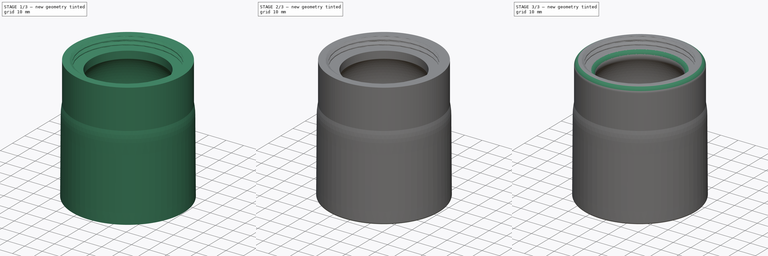
[diagram: build sequence overview — one tinted view per stage of 3, left to right]
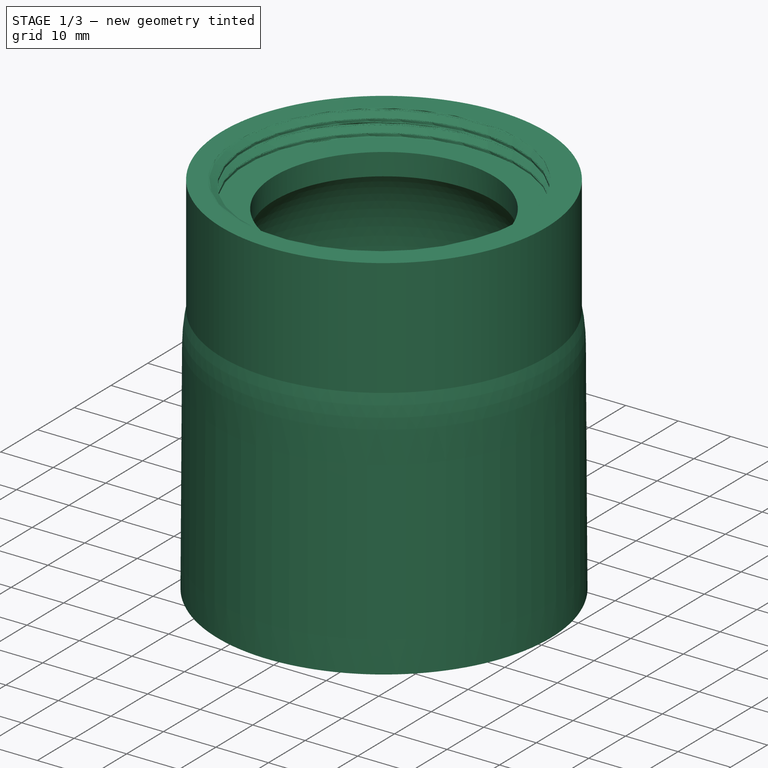
[diagram: stage 1 of 3 — iso view after this stage's code; geometry added in this stage tinted green]
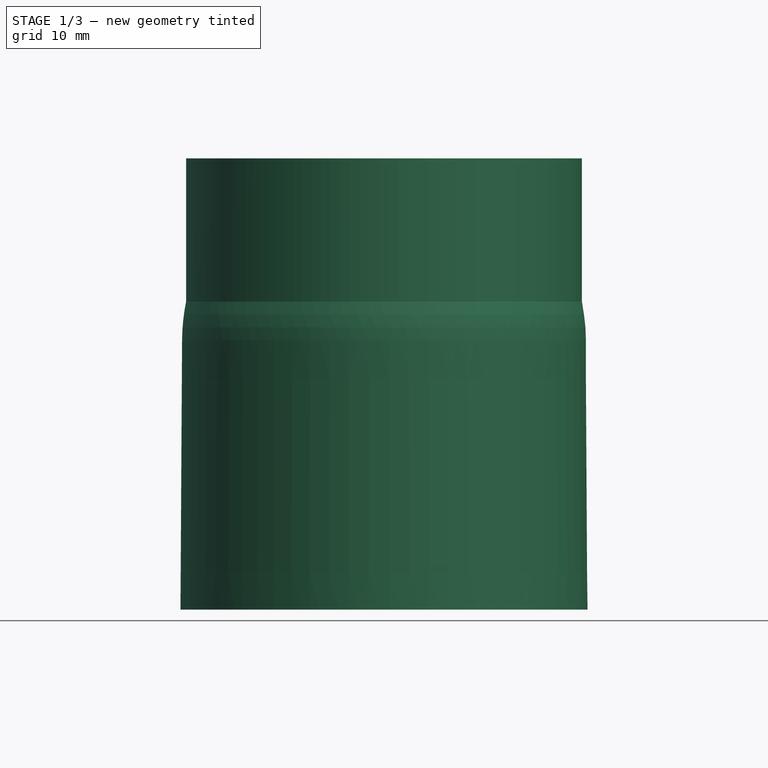
[diagram: stage 1 of 3 — front view after this stage's code; geometry added in this stage tinted green]
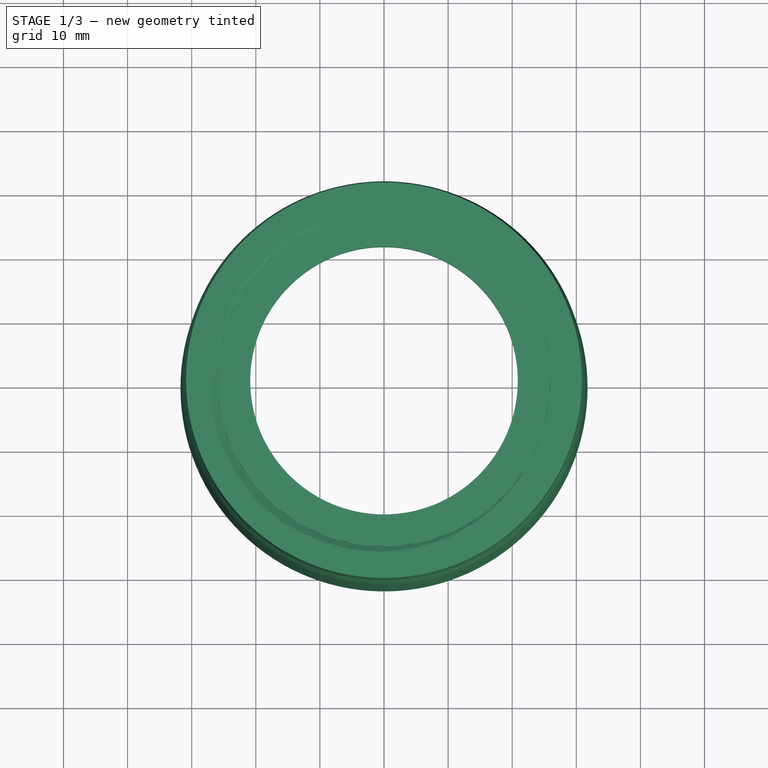
[diagram: stage 1 of 3 — top view after this stage's code; geometry added in this stage tinted green]
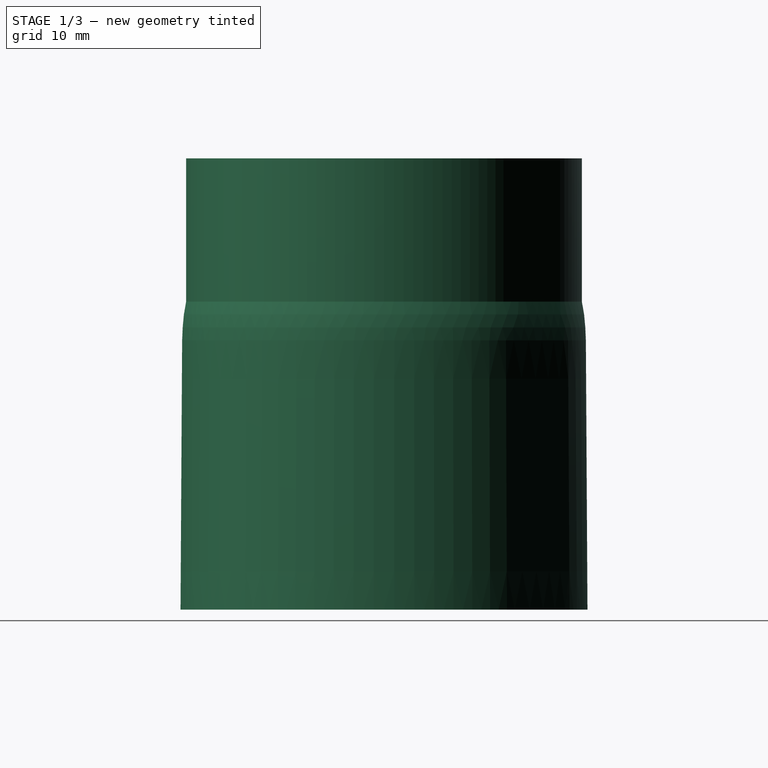
[diagram: stage 1 of 3 — right view after this stage's code; geometry added in this stage tinted green]
FCSTD DOCUMENT  (FreeCAD 0.20R29177 +426 (Git))
Label: diffuser
License: All rights reserved
LicenseURL: http://en.wikipedia.org/wiki/All_rights_reserved
objects: PartDesign::Fillet×3, Sketcher::SketchObject×2, PartDesign::Revolution×1, Part::Part2DObjectPython×1, Part::Helix×1, PartDesign::SubtractivePipe×1, PartDesign::Body×1
note: 15 computed .brp shape members not serialized (recipe doc carries the construction recipe); baked Part::Feature solids carry a one-line shape summary decoded from their .brp

FEATURE [Sketcher::SketchObject] Sketch
  FullyConstrained = true
  MapMode = 5
  Placement = pos=(0,0,0) rot=(1,0,0;1.5708rad)
  Support = -> [XZ_Plane]
  sketch-geometry (20):
    g0: LineSegment StartX=-31.5 StartY=42 StartZ=0 EndX=-31.75 EndY=0 EndZ=0
    g1: LineSegment StartX=-31.75 StartY=0 StartZ=0 EndX=-28.75 EndY=0 EndZ=0
    g2: ArcOfCircle CenterX=0 CenterY=41.8125 CenterZ=0 NormalX=0 NormalY=0 NormalZ=1 AngleXU=0 Radius=31.5006 StartAngle=2.2952 EndAngle=3.13564
    g3: LineSegment StartX=-28.75 StartY=0 StartZ=0 EndX=-28.5 EndY=42 EndZ=0
    g4: ArcOfCircle CenterX=0 CenterY=41.8125 CenterZ=0 NormalX=0 NormalY=0 NormalZ=1 AngleXU=0 Radius=28.5006 StartAngle=2.3927 EndAngle=3.13501
    g5: LineSegment StartX=-20.875 StartY=61.2166 StartZ=0 EndX=-20.875 EndY=65.4032 EndZ=0
    g6: LineSegment StartX=-30.875 StartY=48.0591 StartZ=0 EndX=-30.875 EndY=70.4032 EndZ=0
    g7: LineSegment StartX=-30.875 StartY=70.4032 StartZ=0 EndX=-25.875 EndY=70.4032 EndZ=0
    g8: LineSegment StartX=-25.875 StartY=70.4032 StartZ=0 EndX=-25.875 EndY=65.4032 EndZ=0
    g9: LineSegment StartX=-20.875 StartY=65.4032 StartZ=0 EndX=-25.875 EndY=65.4032 EndZ=0
    g10: ArcOfCircle CenterX=0 CenterY=41.8125 CenterZ=0 NormalX=0 NormalY=0 NormalZ=1 AngleXU=0 Radius=31.5006 StartAngle=2.94197 EndAngle=3.13564
    g11: LineSegment StartX=-30.875 StartY=70.4032 StartZ=0 EndX=-20.875 EndY=70.4032 EndZ=0
    g12: LineSegment StartX=-20.875 StartY=70.4032 StartZ=0 EndX=-20.875 EndY=61.2166 EndZ=0
    g13: LineSegment StartX=-31.5 StartY=42 StartZ=0 EndX=-28.5 EndY=42 EndZ=0
    g14: Circle CenterX=-59.8285 CenterY=20.6854 CenterZ=0 NormalX=0 NormalY=0 NormalZ=1 AngleXU=0 Radius=31.3011
    g15: LineSegment StartX=-28.6429 StartY=17.9997 StartZ=0 EndX=-28.6131 EndY=22.9997 EndZ=0
    g16: LineSegment StartX=-28.528 StartY=20.4991 StartZ=0 EndX=-28.628 EndY=20.4997 EndZ=0
    g17: ArcOfCircle CenterX=-59.8285 CenterY=20.6854 CenterZ=0 NormalX=0 NormalY=0 NormalZ=1 AngleXU=0 Radius=31.3011 StartAngle=6.19728 EndAngle=6.35719
    g18: LineSegment StartX=-28.6131 StartY=22.9997 StartZ=0 EndX=-28.5 EndY=42 EndZ=0
    g19: LineSegment StartX=-28.75 StartY=0 StartZ=0 EndX=-28.6429 EndY=17.9997 EndZ=0
  constraints (57):
    c: PointOnObject(g0,g-1)
    c: Coincident(g1,g0)
    c: Horizontal(g1)
    c: Tangent(g2,g0) = -1.5708
    c: Coincident(g3,g1)
    c: Coincident(g4,g2)
    c: Coincident(g4,g3)
    c: Coincident(g5,g4)
    c: Coincident(g5,g2)
    c: Vertical(g5)
    c: DistanceX(g1,g1) = 3
    c: DistanceY(g0,g0) = 42
    c: PointOnObject(g2,g-2)
    c: DistanceX(g4,g2) = 20.875
    c: DistanceX(g1,g-1) = 28.75
    c: DistanceY(g5,g5) = 4.18655
    c: Vertical(g6)
    c: Coincident(g7,g6)
    c: Horizontal(g7)
    c: Coincident(g8,g7)
    c: Vertical(g8)
    c: Coincident(g9,g2)
    c: Coincident(g9,g8)
    c: Horizontal(g9)
    c: DistanceY(g8,g8) = 5
    c: DistanceX(g7,g7) = 5
    c: Coincident(g10,g4)
    c: Coincident(g10,g0)
    c: Coincident(g10,g6)
    c: DistanceX(g9,g9) = 5
    c: DistanceX(g8,g4) = 25.875
    c: Coincident(g11,g6)
    c: Horizontal(g11)
    c: Coincident(g12,g11)
    c: Coincident(g12,g4)
    c: Vertical(g12)
    c: DistanceX(g3,g4) = 28.5
    c: Parallel(g3,g0)
    c: Coincident(g13,g0)
    c: Coincident(g13,g3)
    c: Horizontal(g13)
    c: PointOnObject(g15,g14)
    c: DistanceY(g15,g15) = 5
    c: Parallel(g15,g3)
    c: Distance(g15,g1) = 18
    c: PointOnObject(g15,g3)
    c: PointOnObject(g16,g14)
    c: Perpendicular(g3,g16)
    c: Symmetric(g15,g15,g16)
    c: Coincident(g17,g14)
    c: Coincident(g17,g15)
    c: Coincident(g17,g15)
    c: Coincident(g4,g18)
    c: Coincident(g18,g17)
    c: Distance(g16) = 0.1
    c: Coincident(g19,g1)
    c: Coincident(g19,g17)
FEATURE [PartDesign::Revolution] Revolution
  Angle = 360
  Axis = (0,-2e-16,1)
  Base = (0,0,0)
  Placement = pos=(0,0,0) rot=(1,0,0;1.5708rad)
  Profile = -> Sketch
  ReferenceAxis = -> Sketch [V_Axis]
FEATURE [Part::Part2DObjectPython] VThreadProfile  # Draft 2D object (typed FeaturePython)
  Area = 2223.78
  Closed = true
  Continuity = C2
  Height = 5
  Helix = Helix
  Instructions = Expand this with the ... button to view instructions | Sweep this object along a helix of the same pitch to produce your thread. | It is recommended to make the helix in the ThreadProfile workbench. | If there is an active Body the ThreadProfile object will be put into it.,If not it can be dragged and dropped into the body later. | If there is an active Body when the helix is made there will be made a ShapeBinder for it | For internal threads you will need to cut the Sweep object out of a cylinder, or if using Part Design sweep it as a Subtractive Pipe. | Always use Frenet mode | I have provided some presets, but it is possible there could be some errors.  Double check for mission critical applications. | Also, the tolerances might be different from what you wish to have.  I believe the internal minor diameters are all minimum and the external are all maximum.
  InternalOrExternal = 0
  MakeFace = true
  MapMode = 11
  MinorDiameter = 52
  Parameterization = 1
  Pitch = 2.5
  Placement = pos=(0,-1.56e-14,70.4032) rot=(0.707107,0.707107,0;3.14159rad)
  Points = (66) [(25.88,2.49544,0),(25.521,4.96785,0),(24.9264,7.39438,0),(24.1016,9.75264,0),(23.0543,12.0209,0),(21.7941,14.1781,0),(20.3327,16.2044,0),+59 more]
  Presets = 0
  Quality = 11
  Support = -> [Revolution]
  ThreadCount = 2
  Variants = 0
  Version = 1.85
  external2S_data = [-0.00461051,-0.00886426,-0.0128148,-0.0165028,-0.0199596,-0.0232105,-0.0262759,-0.0291725,-0.0319145,-0.0345137,-0.0369805,-0.0393235,-0.0415505,-0.0436681,-0.0456823,-0.0475981,-0.0494204,-0.0511532,-0.0528003,-0.0543649,-0.0558502,+698 more]
  external3S_data = [-0.00677828,-0.0128149,-0.0182584,-0.0232106,-0.0277444,-0.0319145,-0.0357632,-0.0393236,-0.0426227,-0.0456823,-0.0485208,-0.0511533,-0.0535928,-0.0558503,-0.0579353,-0.059856,-0.0616195,-0.0632319,-0.0646984,-0.0660239,-0.0672123,+698 more]
  external45_data = [-0.00137363,-0.00271738,-0.00403219,-0.00531893,-0.00657844,-0.00781148,-0.00901878,-0.010201,-0.0113589,-0.012493,-0.0136039,-0.0146921,-0.0157583,-0.0168028,-0.0178261,-0.0188288,-0.0198112,-0.0207738,-0.0217169,-0.0226409,-0.0235462,+698 more]
  external_data = [-0.00235387,-0.00461052,-0.00677828,-0.00886428,-0.0108747,-0.0128149,-0.0146895,-0.0165028,-0.0182584,-0.0199597,-0.0216095,-0.0232106,-0.0247653,-0.0262759,-0.0277444,-0.0291725,-0.0305621,-0.0319145,-0.0332313,-0.0345138,-0.0357632,+698 more]
  internal2S_data = [0,0,0,0,0,0,0,0,0,0,0,0,0,0,0,0,0,0,0,0,0,0,0,0,0,0,0,0,0,0,0,0,0,0,0,0,0,0,0,0,0,0,0,0,0,0,0,0,0,0,0,0,0,0,0,0,0,0,0,0,0,0,0,0,0,0,0,0,0,0,0,0,0,0,0,0,0,0,0,0,0,0,0,0,0,0,0,0,0,0,0.00481128,0.00962256,0.0144338,0.0192451,0.0240564,+624 more]
  internal3S_data = [0,0,0,0,0,0,0,0,0,0,0,0,0,0,0,0,0,0,0,0,0,0,0,0,0,0,0,0,0,0,0,0,0,0,0,0,0,0,0,0,0,0,0,0,0,0,0,0,0,0,0,0,0,0,0,0,0,0,0,0,0.00721688,0.0144338,0.0216506,0.0288675,0.0360844,0.0433013,0.0505181,0.057735,0.0649519,0.0721688,0.0793857,0.0866025,+647 more]
  internal45_data = [0,0,0,0,0,0,0,0,0,0,0,0,0,0,0,0,0,0,0,0,0,0,0,0,0,0,0,0,0,0,0,0,0,0,0,0,0,0,0,0,0,0,0,0,0,0,0,0,0,0,0,0,0,0,0,0,0,0,0,0,0,0,0,0,0,0,0,0,0,0,0,0,0,0,0,0,0,0,0,0,0,0,0,0,0,0,0,0,0,0,0,0,0,0,0,0,0,0,0,0,0,0,0,0,0,0,0,0,0,0,0,0,0,0,0,0,0,0,0,0,+599 more]
  internal_data = [0,0,0,0,0,0,0,0,0,0,0,0,0,0,0,0,0,0,0,0,0,0,0,0,0,0,0,0,0,0,0,0,0,0,0,0,0,0,0,0,0,0,0,0,0,0,0,0,0,0,0,0,0,0,0,0,0,0,0,0,0,0,0,0,0,0,0,0,0,0,0,0,0,0,0,0,0,0,0,0,0,0,0,0,0,0,0,0,0,0,0,0,0,0,0,0,0,0,0,0,0,0,0,0,0,0,0,0,0,0,0,0,0,0,0,0,0,0,0,0,+599 more]
  preset_names = <blob: 3959 chars omitted>
  presets_data = [0,0,0,2.20878,24.1173,24.6888,0.25,0.693,0.729,0.25,0.793,0.829,0.25,0.893,0.929,0.3,1.032,1.075,0.35,1.171,1.221,0.35,1.371,1.421,0.4,1.509,1.567,0.45,1.648,1.713,0.45,1.948,2.013,0.5,2.387,2.459,0.6,2.764,2.85,0.7,3.141,3.242,0.75,3.58,+712 more]
FEATURE [Part::Helix] Helix
  Angle = 0
  AttacherType = Attacher::AttachEngine3D
  Height = 5
  LocalCoord = 0
  MapMode = 11
  Pitch = 2.5
  Placement = pos=(0,-1.56e-14,70.4032) rot=(0.707107,0.707107,0;3.14159rad)
  Radius = 1
  SegmentLength = 0
  Style = 0
  Support = -> [Revolution]
  expr: AttachmentOffset = VThreadProfile.AttachmentOffset
  expr: Height = VThreadProfile.ThreadCount * VThreadProfile.Pitch
  expr: MapMode = VThreadProfile.MapMode
  expr: MapPathParameter = VThreadProfile.MapPathParameter
  expr: MapReversed = VThreadProfile.MapReversed
  expr: Pitch = VThreadProfile.Pitch
  expr: Support = VThreadProfile.Support
FEATURE [PartDesign::SubtractivePipe] SubtractivePipe
  AuxilleryCurvelinear = true
  AuxillerySpineTangent = false
  BaseFeature = -> Revolution
  Binormal = (0,0,0)
  Mode = 2
  Placement = pos=(0,0,0) rot=(1,0,0;1.5708rad)
  Profile = -> VThreadProfile
  Spine = -> Helix
  SpineTangent = false
  Transformation = 0
  Transition = 0
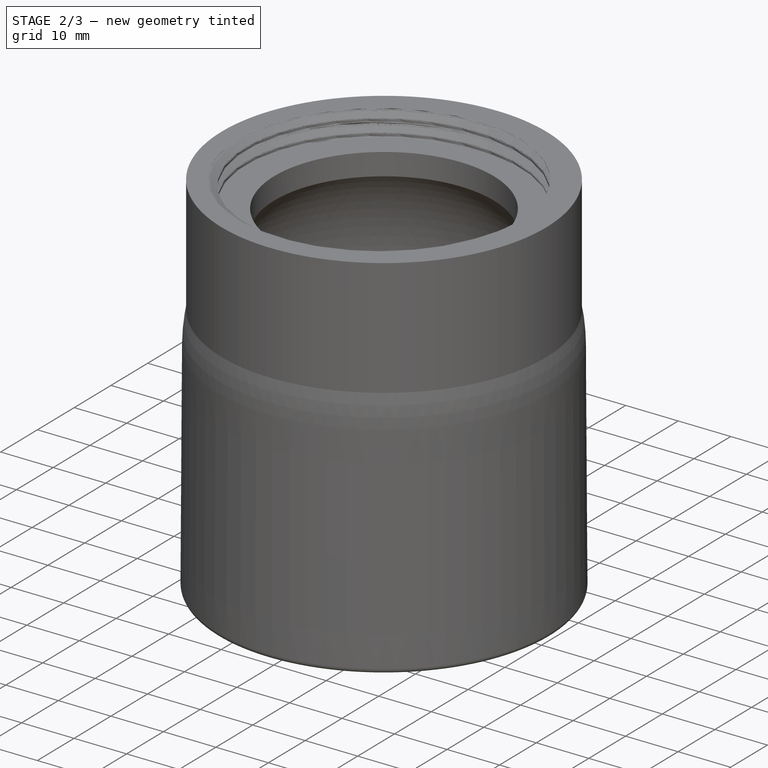
[diagram: stage 2 of 3 — iso view after this stage's code; geometry added in this stage tinted green]
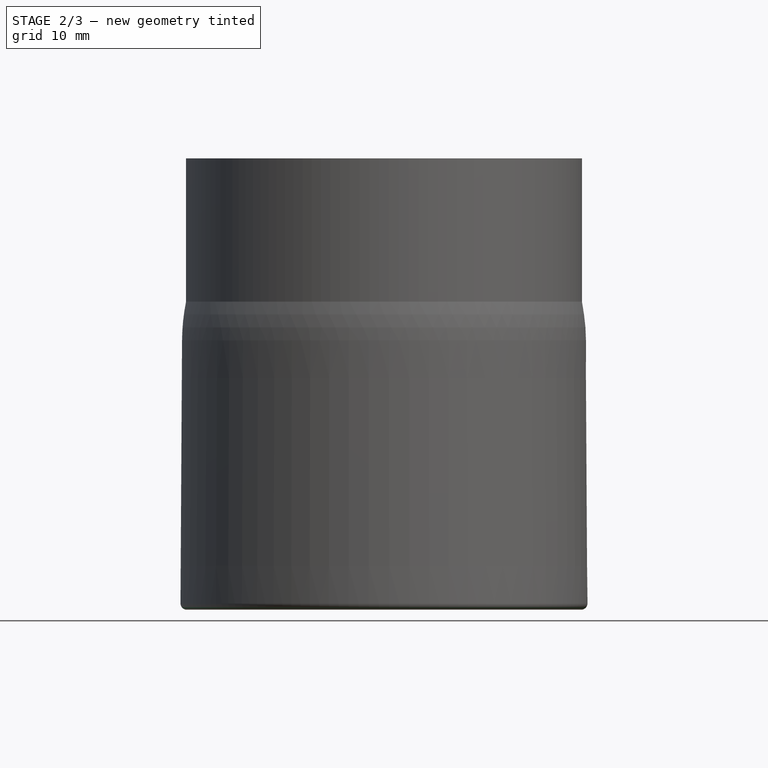
[diagram: stage 2 of 3 — front view after this stage's code; geometry added in this stage tinted green]
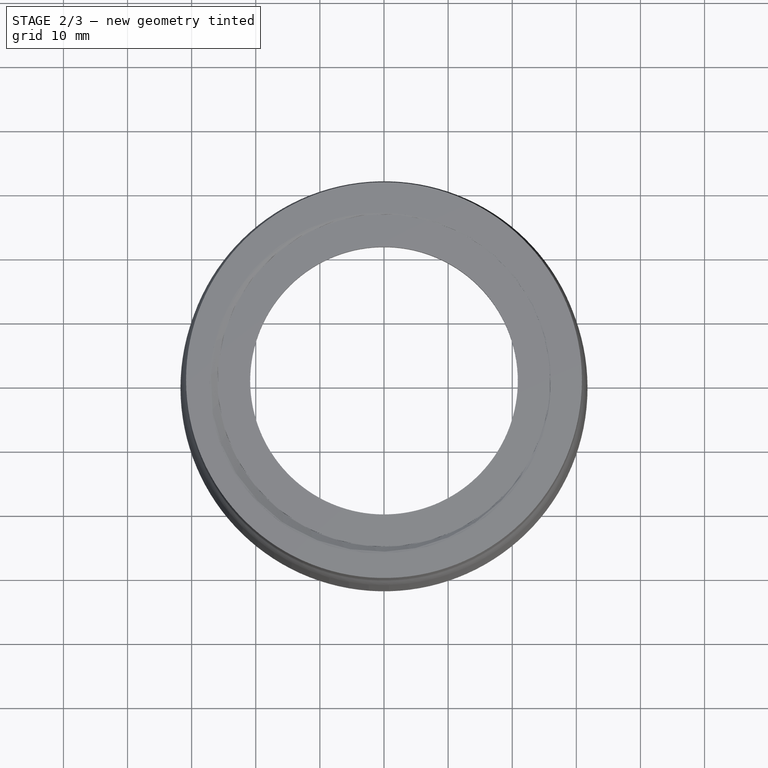
[diagram: stage 2 of 3 — top view after this stage's code; geometry added in this stage tinted green]
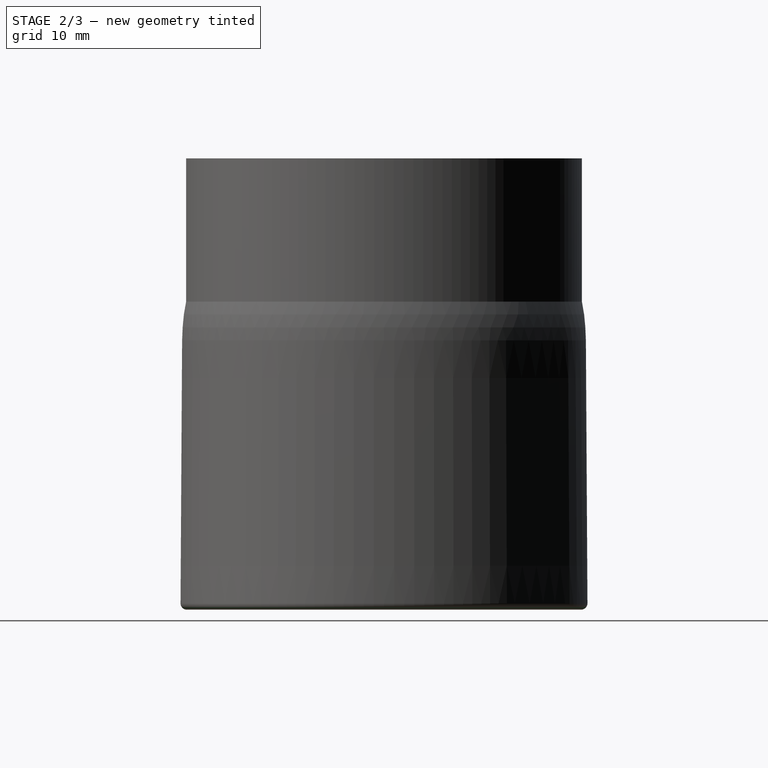
[diagram: stage 2 of 3 — right view after this stage's code; geometry added in this stage tinted green]
FEATURE [PartDesign::Fillet] Fillet
  Base = -> SubtractivePipe [Face5]
  BaseFeature = -> SubtractivePipe
  Placement = pos=(0,0,0) rot=(1,0,0;1.5708rad)
  Radius = 1
  SupportTransform = false
  UseAllEdges = false
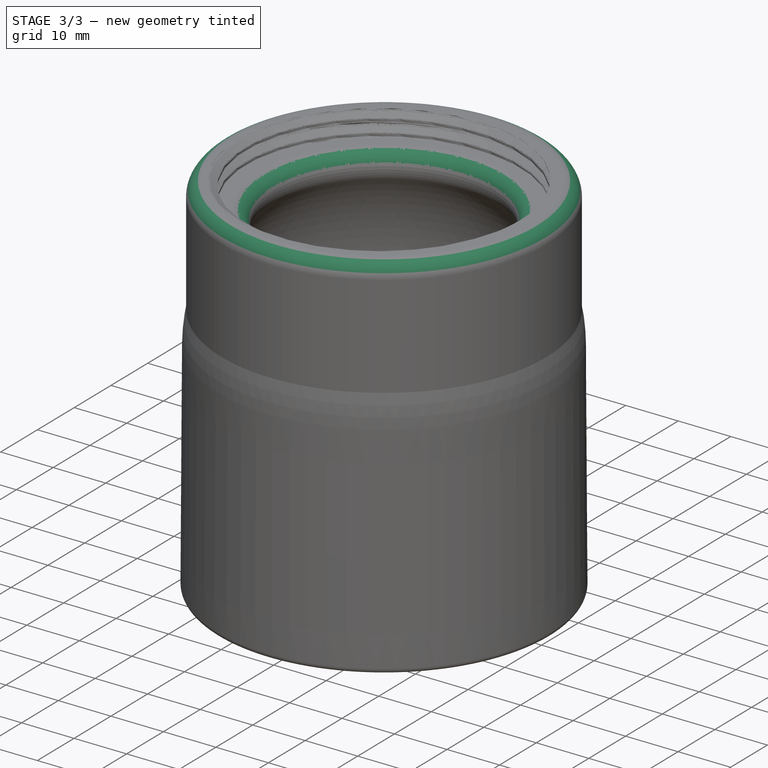
[diagram: stage 3 of 3 — iso view after this stage's code; geometry added in this stage tinted green]
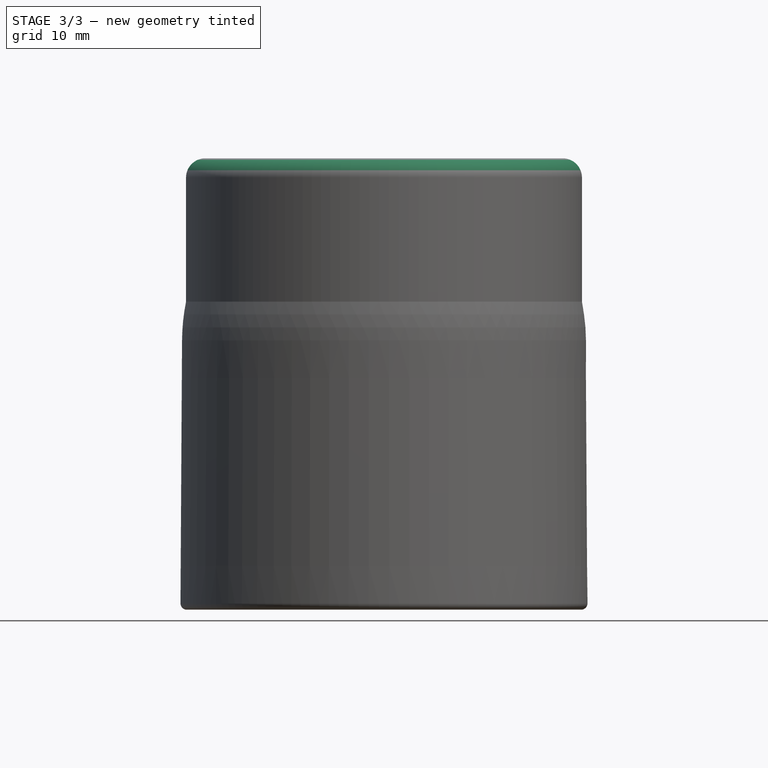
[diagram: stage 3 of 3 — front view after this stage's code; geometry added in this stage tinted green]
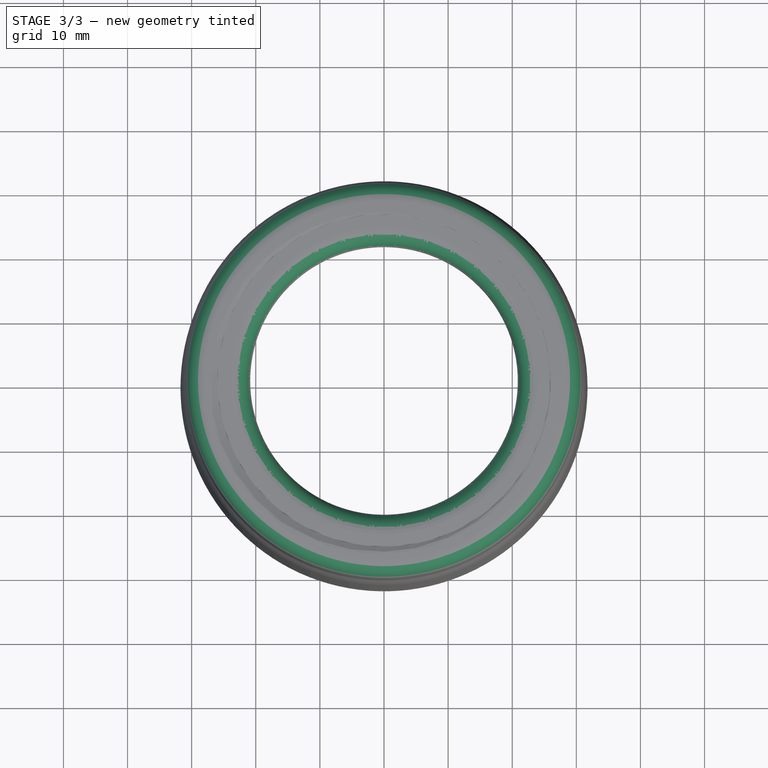
[diagram: stage 3 of 3 — top view after this stage's code; geometry added in this stage tinted green]
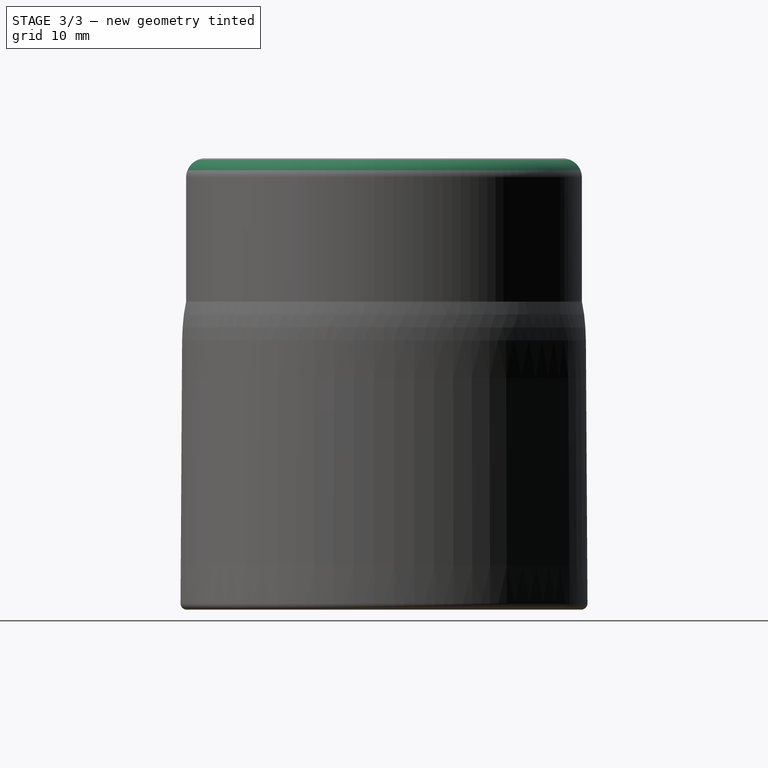
[diagram: stage 3 of 3 — right view after this stage's code; geometry added in this stage tinted green]
FEATURE [PartDesign::Fillet] Fillet001
  Base = -> Fillet [Edge9]
  BaseFeature = -> Fillet
  Placement = pos=(0,0,0) rot=(1,0,0;1.5708rad)
  Radius = 3
  SupportTransform = false
  UseAllEdges = false
FEATURE [PartDesign::Fillet] Fillet002
  Base = -> Fillet001 [Face10]
  BaseFeature = -> Fillet001
  Placement = pos=(0,0,0) rot=(1,0,0;1.5708rad)
  Radius = 3
  SupportTransform = false
  UseAllEdges = false
FEATURE [Sketcher::SketchObject] Sketch001
  ExternalGeometry = -> [SubtractivePipe]
  FullyConstrained = true
  MapMode = 5
  Placement = pos=(0,0,0) rot=(1,0,0;1.5708rad)
  Support = -> [XZ_Plane]
  sketch-geometry (4):
    g0: LineSegment StartX=-1.5 StartY=27.9997 StartZ=0 EndX=1.5 EndY=27.9997 EndZ=0
    g1: LineSegment StartX=1.5 StartY=27.9997 StartZ=0 EndX=1.5 EndY=0 EndZ=0
    g2: LineSegment StartX=1.5 StartY=0 StartZ=0 EndX=-1.5 EndY=0 EndZ=0
    g3: LineSegment StartX=-1.5 StartY=0 StartZ=0 EndX=-1.5 EndY=27.9997 EndZ=0
  constraints (11):
    c: Coincident(g0,g1)
    c: Coincident(g1,g2)
    c: Coincident(g2,g3)
    c: Coincident(g3,g0)
    c: Horizontal(g0)
    c: Horizontal(g2)
    c: Vertical(g1)
    c: Vertical(g3)
    c: Symmetric(g1,g2,g-1)
    c: DistanceY(g-5,g0) = 5
    c: DistanceX(g2,g2) = 3
FEATURE [PartDesign::Body] Body
  Group = -> [Sketch,Revolution,VThreadProfile,Helix,SubtractivePipe,Sketch001,Fillet,Fillet001,Fillet002]
  Origin = -> Origin
  Tip = -> Fillet002
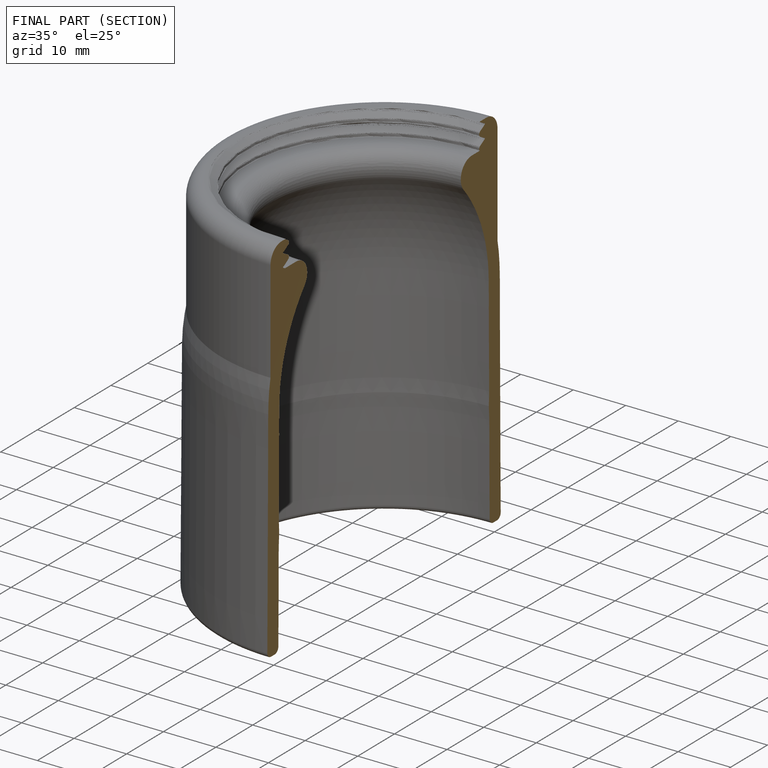
[diagram: finished part — half-section view (interior)]
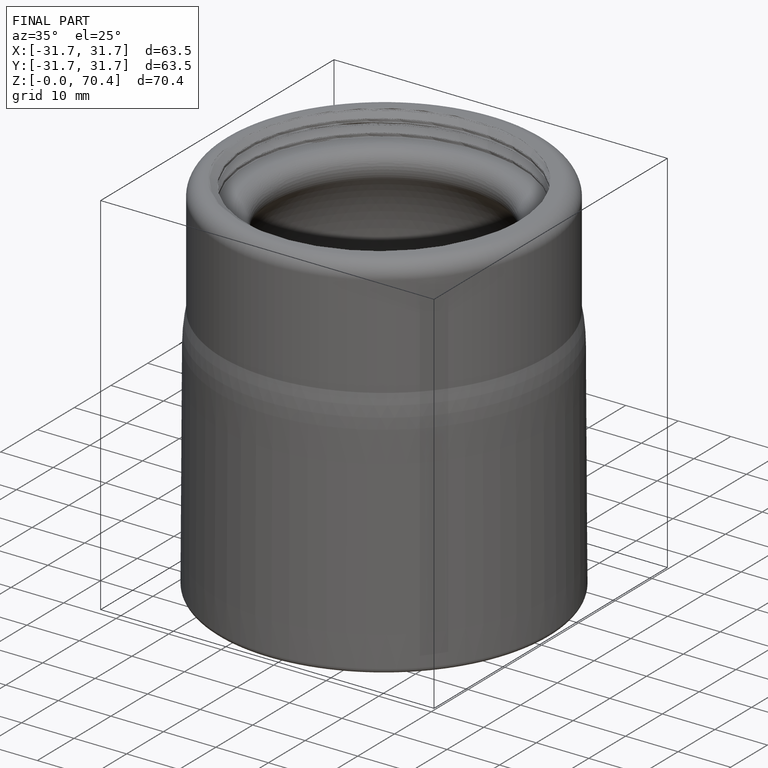
[diagram: finished part — iso view with bounding-box wireframe]
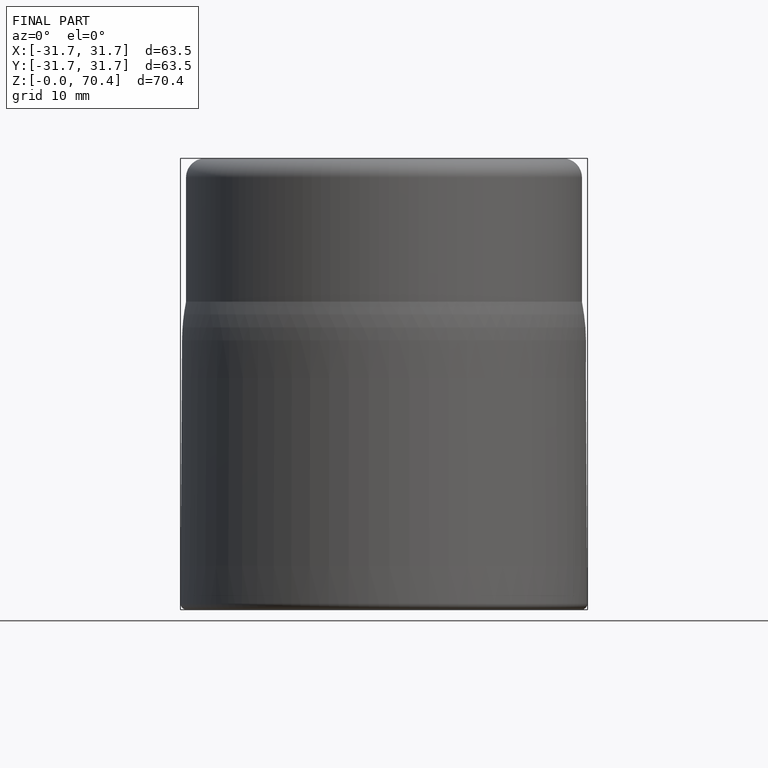
[diagram: finished part — front view with bounding-box wireframe]
